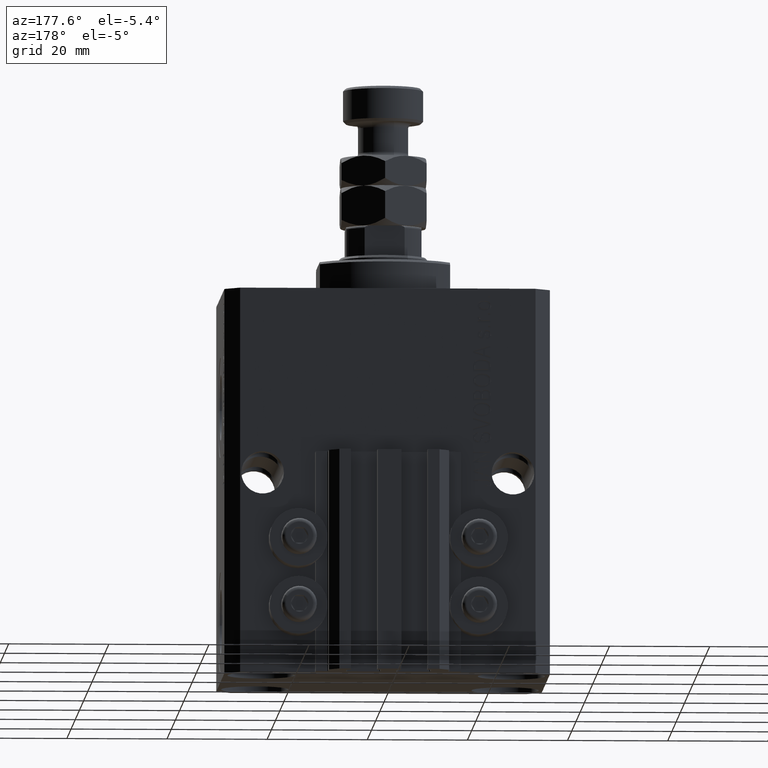
[diagram: clean part render]
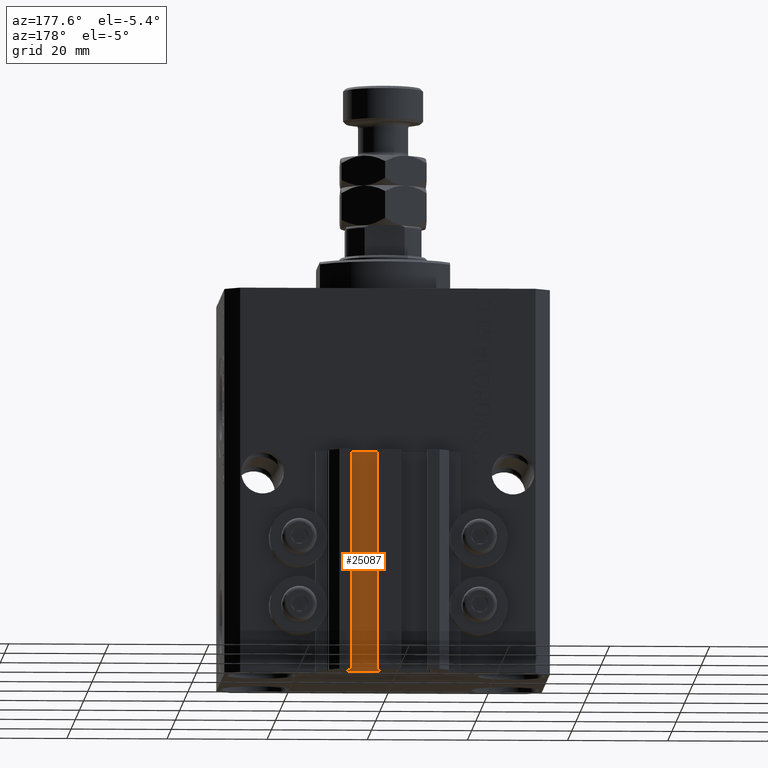
[diagram: same view with one face highlighted and labeled with its STEP entity id]
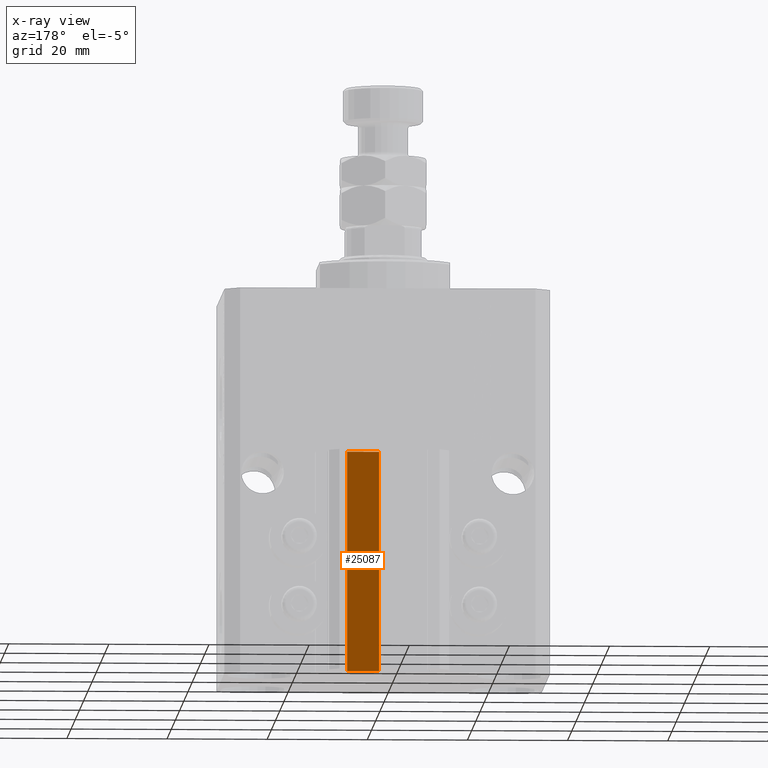
[diagram: x-ray of the same camera — body ghosted, the highlighted face saturated]
A machine part, auxiliary view. The second image highlights one B-rep face of the part: STEP entity #25087.
The next image is the same camera in x-ray: the body ghosted, the highlighted face saturated — about 0% of this face is hidden behind the body in this view.
In plain terms, the highlighted planar face has unit normal (0, 1, 0).
Its self-contained STEP definition (entity closure, byte-faithful):
#379 = VERTEX_POINT ( 'NONE', #18040 ) ;
#3366 = CARTESIAN_POINT ( 'NONE',  ( 8.200000000000001066, 24.49999999999949196, -77.00000000000000000 ) ) ;
#3846 = DIRECTION ( 'NONE',  ( 0.000000000000000000, 0.000000000000000000, 1.000000000000000000 ) ) ;
#3856 = DIRECTION ( 'NONE',  ( -1.000000000000000000, 0.000000000000000000, 0.000000000000000000 ) ) ;
#4590 = DIRECTION ( 'NONE',  ( 0.000000000000000000, 1.000000000000000000, -0.000000000000000000 ) ) ;
#6794 = LINE ( 'NONE', #37479, #44642 ) ;
#6971 = ORIENTED_EDGE ( 'NONE', *, *, #47487, .F. ) ;
#8097 = FACE_OUTER_BOUND ( 'NONE', #8874, .T. ) ;
#8518 = CARTESIAN_POINT ( 'NONE',  ( 8.200000000000001066, 24.49999999999949196, -33.00000000000000000 ) ) ;
#8874 = EDGE_LOOP ( 'NONE', ( #42201, #6971, #17686, #14978 ) ) ;
#11840 = DIRECTION ( 'NONE',  ( 0.000000000000000000, 0.000000000000000000, 1.000000000000000000 ) ) ;
#13033 = VERTEX_POINT ( 'NONE', #36782 ) ;
#14978 = ORIENTED_EDGE ( 'NONE', *, *, #19782, .T. ) ;
#17686 = ORIENTED_EDGE ( 'NONE', *, *, #24935, .T. ) ;
#18040 = CARTESIAN_POINT ( 'NONE',  ( 8.200000000000001066, 24.49999999999949196, -77.00000000000000000 ) ) ;
#18183 = EDGE_CURVE ( 'NONE', #29737, #31375, #6794, .T. ) ;
#19782 = EDGE_CURVE ( 'NONE', #13033, #31375, #22819, .T. ) ;
#22819 = LINE ( 'NONE', #49276, #31163 ) ;
#23662 = VECTOR ( 'NONE', #3856, 1000.000000000000000 ) ;
#24935 = EDGE_CURVE ( 'NONE', #379, #13033, #38056, .T. ) ;
#25087 = ADVANCED_FACE ( 'NONE', ( #8097 ), #39283, .T. ) ;
#29737 = VERTEX_POINT ( 'NONE', #8518 ) ;
#31163 = VECTOR ( 'NONE', #3846, 1000.000000000000000 ) ;
#31375 = VERTEX_POINT ( 'NONE', #46988 ) ;
#32085 = CARTESIAN_POINT ( 'NONE',  ( 8.200000000000001066, 24.49999999999949196, -77.00000000000000000 ) ) ;
#36782 = CARTESIAN_POINT ( 'NONE',  ( 1.800000000000000933, 24.49999999999949196, -77.00000000000000000 ) ) ;
#37479 = CARTESIAN_POINT ( 'NONE',  ( 8.200000000000001066, 24.49999999999949196, -33.00000000000000000 ) ) ;
#38056 = LINE ( 'NONE', #3366, #23662 ) ;
#39283 = PLANE ( 'NONE',  #40385 ) ;
#40318 = DIRECTION ( 'NONE',  ( 0.000000000000000000, 0.000000000000000000, 1.000000000000000000 ) ) ;
#40385 = AXIS2_PLACEMENT_3D ( 'NONE', #45789, #4590, #11840 ) ;
#42201 = ORIENTED_EDGE ( 'NONE', *, *, #18183, .F. ) ;
#43357 = VECTOR ( 'NONE', #40318, 1000.000000000000000 ) ;
#44642 = VECTOR ( 'NONE', #48227, 1000.000000000000000 ) ;
#45789 = CARTESIAN_POINT ( 'NONE',  ( 8.200000000000001066, 24.49999999999949196, -77.00000000000000000 ) ) ;
#46988 = CARTESIAN_POINT ( 'NONE',  ( 1.800000000000000933, 24.49999999999949196, -33.00000000000000000 ) ) ;
#47065 = LINE ( 'NONE', #32085, #43357 ) ;
#47487 = EDGE_CURVE ( 'NONE', #379, #29737, #47065, .T. ) ;
#48227 = DIRECTION ( 'NONE',  ( -1.000000000000000000, 0.000000000000000000, 0.000000000000000000 ) ) ;
#49276 = CARTESIAN_POINT ( 'NONE',  ( 1.800000000000000933, 24.49999999999949196, -77.00000000000000000 ) ) ;